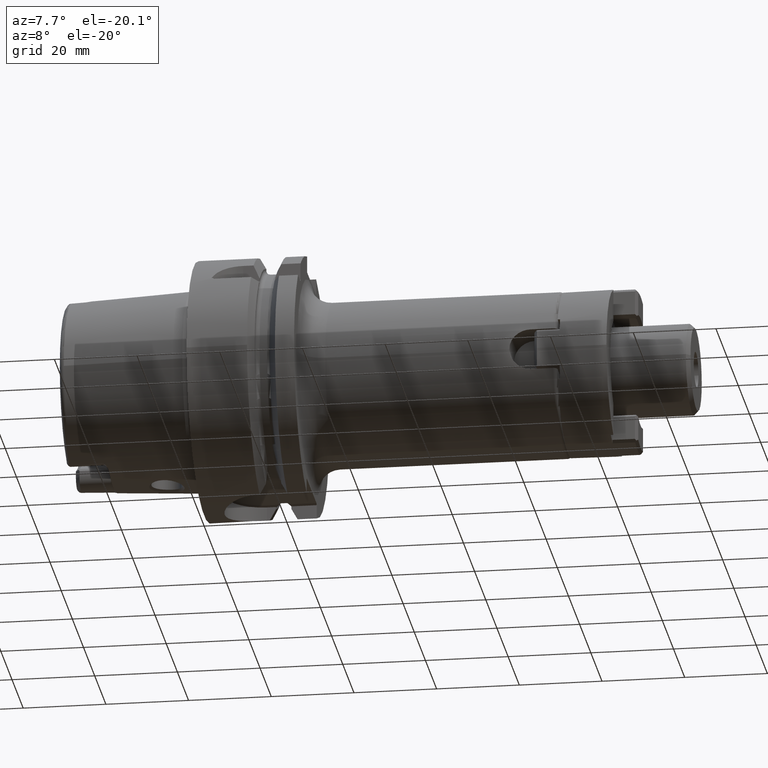
[diagram: clean part render]
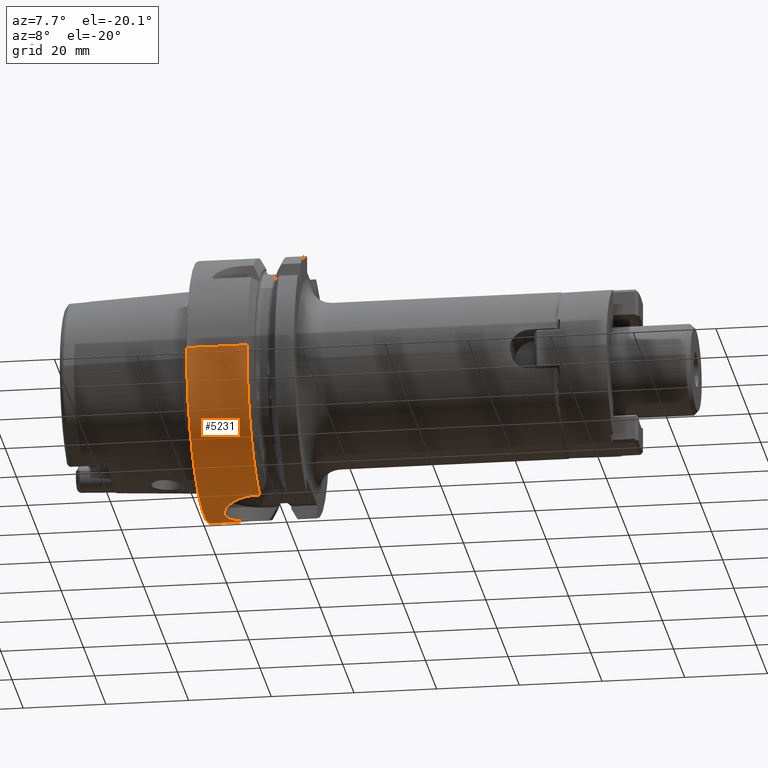
[diagram: same view with one face highlighted and labeled with its STEP entity id]
A machine part, auxiliary view. The second image highlights one B-rep face of the part: STEP entity #5231.
In plain terms, the highlighted cylindrical surface (partial cylindrical patch) has radius 31.5 mm, axis along (1, 0, 0).
Its self-contained STEP definition (entity closure, byte-faithful):
#1073=CARTESIAN_POINT('',(-1.421085471520E-14,0.E0,0.E0));
#1074=DIRECTION('',(-1.E0,0.E0,0.E0));
#1075=DIRECTION('',(0.E0,1.E0,0.E0));
#1076=AXIS2_PLACEMENT_3D('',#1073,#1074,#1075);
#1124=CARTESIAN_POINT('',(2.E0,3.15E1,-1.916034746595E-14));
#1126=CARTESIAN_POINT('',(1.2E1,3.15E1,0.E0));
#1588=CARTESIAN_POINT('',(1.39675E1,9.0175E0,-3.018169467989E1));
#1589=CARTESIAN_POINT('',(1.358558656281E1,9.0175E0,-3.018169467989E1));
#1590=CARTESIAN_POINT('',(1.282118465468E1,8.969691357916E0,-3.019604517684E1));
#1591=CARTESIAN_POINT('',(1.165591828593E1,8.743491566228E0,-3.026274300150E1));
#1592=CARTESIAN_POINT('',(1.052276298313E1,8.361963120688E0,-3.037104920547E1));
#1593=CARTESIAN_POINT('',(9.456122836012E0,7.837772025634E0,-3.051135915032E1));
#1594=CARTESIAN_POINT('',(8.470252282138E0,7.180724754911E0,-3.067358430769E1));
#1595=CARTESIAN_POINT('',(7.575631308163E0,6.398050863983E0,-3.084741609441E1));
#1596=CARTESIAN_POINT('',(6.786194961893E0,5.497065304782E0,-3.102161724462E1));
#1597=CARTESIAN_POINT('',(6.130229967676E0,4.511622175765E0,-3.118093411543E1));
#1598=CARTESIAN_POINT('',(5.609342792779E0,3.453031312959E0,-3.131662634576E1));
#1599=CARTESIAN_POINT('',(5.228345621102E0,2.326812347583E0,-3.142101017036E1));
#1600=CARTESIAN_POINT('',(4.999797746036E0,1.164288452435E0,-3.148568890825E1));
#1601=CARTESIAN_POINT('',(4.925086592477E0,-1.642939922344E-4,
-3.150715972921E1));
#1602=CARTESIAN_POINT('',(4.999855898167E0,-1.164866928839E0,
-3.148567217088E1));
#1603=CARTESIAN_POINT('',(5.228566513789E0,-2.327652949522E0,
-3.142094829471E1));
#1604=CARTESIAN_POINT('',(5.609617740094E0,-3.453657849156E0,
-3.131655310854E1));
#1605=CARTESIAN_POINT('',(6.130421690937E0,-4.511937610781E0,
-3.118088635565E1));
#1606=CARTESIAN_POINT('',(6.786402135999E0,-5.497346241188E0,
-3.102156844966E1));
#1607=CARTESIAN_POINT('',(7.576014991373E0,-6.398444919226E0,
-3.084733497918E1));
#1608=CARTESIAN_POINT('',(8.470738074749E0,-7.181093772441E0,
-3.067349724349E1));
#1609=CARTESIAN_POINT('',(9.456668390199E0,-7.838101066607E0,
-3.051127521442E1));
#1610=CARTESIAN_POINT('',(1.052385858790E1,-8.362443708215E0,
-3.037091729406E1));
#1611=CARTESIAN_POINT('',(1.165737665338E1,-8.743869582945E0,
-3.026263280158E1));
#1612=CARTESIAN_POINT('',(1.282210884292E1,-8.969775642486E0,
-3.019601972103E1));
#1613=CARTESIAN_POINT('',(1.358595047E1,-9.0175E0,-3.018169467989E1));
#1614=CARTESIAN_POINT('',(1.39675E1,-9.0175E0,-3.018169467989E1));
#1616=DIRECTION('',(1.E0,0.E0,0.E0));
#1617=VECTOR('',#1616,6.550009252407E-1);
#1618=CARTESIAN_POINT('',(1.39675E1,9.0175E0,-3.018169467989E1));
#1619=LINE('',#1618,#1617);
#1620=CARTESIAN_POINT('',(1.462250092524E1,0.E0,0.E0));
#1621=DIRECTION('',(1.E0,0.E0,0.E0));
#1622=DIRECTION('',(0.E0,2.862698412698E-1,-9.581490374568E-1));
#1623=AXIS2_PLACEMENT_3D('',#1620,#1621,#1622);
#1625=DIRECTION('',(-1.E0,0.E0,0.E0));
#1626=VECTOR('',#1625,2.622500925241E0);
#1627=CARTESIAN_POINT('',(1.462250092524E1,3.15E1,0.E0));
#1628=LINE('',#1627,#1626);
#1629=CARTESIAN_POINT('',(7.E0,3.110064308017E1,-5.E0));
#1630=CARTESIAN_POINT('',(7.237711971861E0,3.110064308017E1,-5.E0));
#1631=CARTESIAN_POINT('',(7.708364793932E0,3.110604176585E1,-4.966603280739E0));
#1632=CARTESIAN_POINT('',(8.409071627816E0,3.113002370339E1,-4.815048141531E0));
#1633=CARTESIAN_POINT('',(9.077383280619E0,3.116768201896E1,-4.566768250610E0));
#1634=CARTESIAN_POINT('',(9.709737219660E0,3.121653000009E1,-4.222389763166E0));
#1635=CARTESIAN_POINT('',(1.028259694179E1,3.127184472959E1,-3.794310232818E0));
#1636=CARTESIAN_POINT('',(1.079381736502E1,3.133002109497E1,-3.283144879213E0));
#1637=CARTESIAN_POINT('',(1.122187341968E1,3.138511895323E1,-2.710559209569E0));
#1638=CARTESIAN_POINT('',(1.156650397528E1,3.143365111660E1,-2.077946235915E0));
#1639=CARTESIAN_POINT('',(1.181475018474E1,3.147092885130E1,-1.410108381556E0));
#1640=CARTESIAN_POINT('',(1.196660689769E1,3.149467147123E1,
-7.086190467967E-1));
#1641=CARTESIAN_POINT('',(1.2E1,3.15E1,-2.377578867780E-1));
#1642=CARTESIAN_POINT('',(1.2E1,3.15E1,0.E0));
#1644=CARTESIAN_POINT('',(2.E0,3.15E1,-1.916034746595E-14));
#1645=CARTESIAN_POINT('',(2.E0,3.15E1,-2.377563632343E-1));
#1646=CARTESIAN_POINT('',(2.033376819090E0,3.149467390288E1,
-7.086329282889E-1));
#1647=CARTESIAN_POINT('',(2.185379667149E0,3.147090888892E1,-1.410571551366E0));
#1648=CARTESIAN_POINT('',(2.433605027219E0,3.143363519165E1,-2.078170817110E0));
#1649=CARTESIAN_POINT('',(2.778328809062E0,3.138509141893E1,-2.710884364051E0));
#1650=CARTESIAN_POINT('',(3.206392404829E0,3.132999596018E1,-3.283376693298E0));
#1651=CARTESIAN_POINT('',(3.717592314676E0,3.127182433739E1,-3.794478939285E0));
#1652=CARTESIAN_POINT('',(4.290556434518E0,3.121650481486E1,-4.222574092482E0));
#1653=CARTESIAN_POINT('',(4.922767506481E0,3.116767216438E1,-4.566833856024E0));
#1654=CARTESIAN_POINT('',(5.591173550853E0,3.113001241939E1,-4.815121163512E0));
#1655=CARTESIAN_POINT('',(6.291762024521E0,3.110604002637E1,-4.966613612597E0));
#1656=CARTESIAN_POINT('',(6.762337956938E0,3.110064308017E1,-5.E0));
#1657=CARTESIAN_POINT('',(7.E0,3.110064308017E1,-5.E0));
#1659=DIRECTION('',(-1.E0,0.E0,1.086605287208E-14));
#1660=VECTOR('',#1659,2.E0);
#1661=CARTESIAN_POINT('',(2.E0,3.15E1,-1.916034746595E-14));
#1662=LINE('',#1661,#1660);
#1663=DIRECTION('',(-1.E0,0.E0,0.E0));
#1664=VECTOR('',#1663,1.462250092524E1);
#1665=CARTESIAN_POINT('',(1.462250092524E1,-3.15E1,0.E0));
#1666=LINE('',#1665,#1664);
#1667=CARTESIAN_POINT('',(1.462250092524E1,0.E0,0.E0));
#1668=DIRECTION('',(1.E0,0.E0,0.E0));
#1669=DIRECTION('',(0.E0,-1.E0,0.E0));
#1670=AXIS2_PLACEMENT_3D('',#1667,#1668,#1669);
#1672=DIRECTION('',(1.E0,0.E0,0.E0));
#1673=VECTOR('',#1672,6.550009252407E-1);
#1674=CARTESIAN_POINT('',(1.39675E1,-9.0175E0,-3.018169467989E1));
#1675=LINE('',#1674,#1673);
#2942=CARTESIAN_POINT('',(-1.421085471520E-14,3.15E1,0.E0));
#2943=CARTESIAN_POINT('',(-1.421085471520E-14,-3.15E1,0.E0));
#2944=VERTEX_POINT('',#2942);
#2945=VERTEX_POINT('',#2943);
#3163=CARTESIAN_POINT('',(1.462250092524E1,-3.15E1,0.E0));
#3164=VERTEX_POINT('',#3163);
#3191=CARTESIAN_POINT('',(7.E0,3.110064308017E1,-5.E0));
#3192=VERTEX_POINT('',#3191);
#3193=VERTEX_POINT('',#1124);
#3194=VERTEX_POINT('',#1126);
#3195=CARTESIAN_POINT('',(1.462250092524E1,3.15E1,0.E0));
#3196=VERTEX_POINT('',#3195);
#3283=CARTESIAN_POINT('',(1.39675E1,-9.0175E0,-3.018169467989E1));
#3284=VERTEX_POINT('',#3283);
#3285=CARTESIAN_POINT('',(1.39675E1,9.0175E0,-3.018169467989E1));
#3286=VERTEX_POINT('',#3285);
#3321=CARTESIAN_POINT('',(1.462250092524E1,9.0175E0,-3.018169467989E1));
#3322=VERTEX_POINT('',#3321);
#3323=CARTESIAN_POINT('',(1.462250092524E1,-9.0175E0,-3.018169467989E1));
#3324=VERTEX_POINT('',#3323);
#5207=CARTESIAN_POINT('',(-3.49E1,0.E0,0.E0));
#5208=DIRECTION('',(1.E0,0.E0,0.E0));
#5209=DIRECTION('',(0.E0,-1.E0,0.E0));
#5210=AXIS2_PLACEMENT_3D('',#5207,#5208,#5209);
#5211=CYLINDRICAL_SURFACE('',#5210,3.15E1);
#5213=ORIENTED_EDGE('',*,*,#5212,.F.);
#5214=ORIENTED_EDGE('',*,*,#4899,.T.);
#5216=ORIENTED_EDGE('',*,*,#5215,.T.);
#5217=ORIENTED_EDGE('',*,*,#4757,.T.);
#5219=ORIENTED_EDGE('',*,*,#5218,.F.);
#5221=ORIENTED_EDGE('',*,*,#5220,.F.);
#5222=ORIENTED_EDGE('',*,*,#4751,.T.);
#5223=ORIENTED_EDGE('',*,*,#4726,.T.);
#5224=ORIENTED_EDGE('',*,*,#4748,.F.);
#5226=ORIENTED_EDGE('',*,*,#5225,.T.);
#5228=ORIENTED_EDGE('',*,*,#5227,.F.);
#5229=EDGE_LOOP('',(#5213,#5214,#5216,#5217,#5219,#5221,#5222,#5223,#5224,#5226,
#5228));
#5230=FACE_OUTER_BOUND('',#5229,.F.);
#5231=ADVANCED_FACE('',(#5230),#5211,.T.);
#1077=CIRCLE('',#1076,3.15E1);
#1615=B_SPLINE_CURVE_WITH_KNOTS('',3,(#1588,#1589,#1590,#1591,#1592,#1593,#1594,
#1595,#1596,#1597,#1598,#1599,#1600,#1601,#1602,#1603,#1604,#1605,#1606,#1607,
#1608,#1609,#1610,#1611,#1612,#1613,#1614),.UNSPECIFIED.,.F.,.F.,(4,1,1,1,1,1,1,
1,1,1,1,1,1,1,1,1,1,1,1,1,1,1,1,1,4),(0.E0,4.166666666667E-2,8.333333333333E-2,
1.25E-1,1.666666666667E-1,2.083333333333E-1,2.5E-1,2.916666666667E-1,
3.333333333333E-1,3.75E-1,4.166666666667E-1,4.583333333333E-1,5.E-1,
5.416666666667E-1,5.833333333333E-1,6.25E-1,6.666666666667E-1,7.083333333333E-1,
7.5E-1,7.916666666667E-1,8.333333333333E-1,8.75E-1,9.166666666667E-1,
9.583333333333E-1,1.E0),.UNSPECIFIED.);
#1624=CIRCLE('',#1623,3.15E1);
#1643=B_SPLINE_CURVE_WITH_KNOTS('',3,(#1629,#1630,#1631,#1632,#1633,#1634,#1635,
#1636,#1637,#1638,#1639,#1640,#1641,#1642),.UNSPECIFIED.,.F.,.F.,(4,1,1,1,1,1,1,
1,1,1,1,4),(0.E0,9.090909090909E-2,1.818181818182E-1,2.727272727273E-1,
3.636363636364E-1,4.545454545455E-1,5.454545454545E-1,6.363636363636E-1,
7.272727272727E-1,8.181818181818E-1,9.090909090909E-1,1.E0),.UNSPECIFIED.);
#1658=B_SPLINE_CURVE_WITH_KNOTS('',3,(#1644,#1645,#1646,#1647,#1648,#1649,#1650,
#1651,#1652,#1653,#1654,#1655,#1656,#1657),.UNSPECIFIED.,.F.,.F.,(4,1,1,1,1,1,1,
1,1,1,1,4),(0.E0,9.090909090909E-2,1.818181818182E-1,2.727272727273E-1,
3.636363636364E-1,4.545454545455E-1,5.454545454545E-1,6.363636363636E-1,
7.272727272727E-1,8.181818181818E-1,9.090909090909E-1,1.E0),.UNSPECIFIED.);
#1671=CIRCLE('',#1670,3.15E1);
#4726=EDGE_CURVE('',#2944,#2945,#1077,.T.);
#4748=EDGE_CURVE('',#3164,#2945,#1666,.T.);
#4751=EDGE_CURVE('',#3193,#2944,#1662,.T.);
#4757=EDGE_CURVE('',#3196,#3194,#1628,.T.);
#4899=EDGE_CURVE('',#3286,#3322,#1619,.T.);
#5212=EDGE_CURVE('',#3286,#3284,#1615,.T.);
#5215=EDGE_CURVE('',#3322,#3196,#1624,.T.);
#5218=EDGE_CURVE('',#3192,#3194,#1643,.T.);
#5220=EDGE_CURVE('',#3193,#3192,#1658,.T.);
#5225=EDGE_CURVE('',#3164,#3324,#1671,.T.);
#5227=EDGE_CURVE('',#3284,#3324,#1675,.T.);